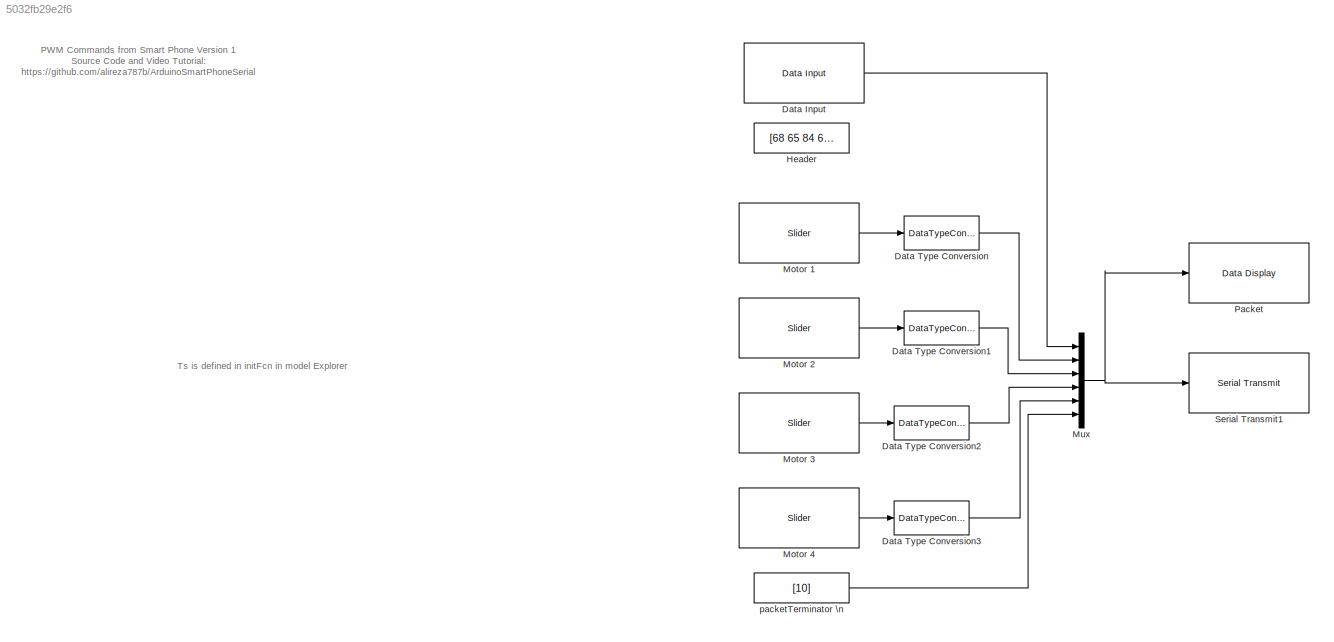
MODEL slx_5032fb29e2f6
KIND model
CONFIG AbsTol = auto
CONFIG EnableMultiTasking = off
CONFIG FixedStep = auto
CONFIG InitFcn = Ts=0.01
CONFIG MaxStep = auto
CONFIG MinStep = auto
CONFIG RelTol = 1e-3
CONFIG SampleTimeConstraint = Unconstrained
CONFIG Solver = FixedStepAuto
CONFIG SolverName = FixedStepAuto
CONFIG StartTime = 0.0
CONFIG StopTime = 10.0
BLOCK [Reference] Data Input  REF=androiduilib/Data Input
  Ports = [0, 1]
  SourceBlock = androiduilib/Data Input
  SourceProductBaseCode = ANDROID
  SourceType = codertarget.internal.androidDataInput
BLOCK [DataTypeConversion] Data Type Conversion
  OutDataTypeStr = uint8
  RndMeth = Floor
  SaturateOnIntegerOverflow = off
BLOCK [DataTypeConversion] Data Type Conversion1
  OutDataTypeStr = uint8
  RndMeth = Floor
  SaturateOnIntegerOverflow = off
BLOCK [DataTypeConversion] Data Type Conversion2
  OutDataTypeStr = uint8
  RndMeth = Floor
  SaturateOnIntegerOverflow = off
BLOCK [DataTypeConversion] Data Type Conversion3
  OutDataTypeStr = uint8
  RndMeth = Floor
  SaturateOnIntegerOverflow = off
BLOCK [Constant] Header
  OutDataTypeStr = uint8
  SampleTime = Ts
  Value = [68 65 84 65]
BLOCK [Reference] Motor 1  REF=androiduilib/Slider
  Ports = [0, 1]
  SourceBlock = androiduilib/Slider
  SourceProductBaseCode = ANDROID
  SourceType = codertarget.internal.androidSlider
BLOCK [Reference] Motor 2  REF=androiduilib/Slider
  Ports = [0, 1]
  SourceBlock = androiduilib/Slider
  SourceProductBaseCode = ANDROID
  SourceType = codertarget.internal.androidSlider
BLOCK [Reference] Motor 3  REF=androiduilib/Slider
  Ports = [0, 1]
  SourceBlock = androiduilib/Slider
  SourceProductBaseCode = ANDROID
  SourceType = codertarget.internal.androidSlider
BLOCK [Reference] Motor 4  REF=androiduilib/Slider
  Ports = [0, 1]
  SourceBlock = androiduilib/Slider
  SourceProductBaseCode = ANDROID
  SourceType = codertarget.internal.androidSlider
BLOCK [Mux] Mux
  DisplayOption = bar
  Inputs = 6
  Ports = [6, 1]
BLOCK [Reference] Packet  REF=androiduilib/Data Display
  Ports = [1]
  SourceBlock = androiduilib/Data Display
  SourceProductBaseCode = ANDROID
  SourceType = codertarget.internal.androidDataDisplay
BLOCK [Reference] Serial Transmit1  REF=androidcommunicationlib/Serial Transmit
  Ports = [1]
  SourceBlock = androidcommunicationlib/Serial Transmit
  SourceProductBaseCode = ANDROID
  SourceType = codertarget.internal.androidSerialTransmit
BLOCK [Constant] packetTerminator \n
  OutDataTypeStr = uint8
  Value = [10]
ANNOTATION (root): Ts is defined in initFcn in model Explorer
ANNOTATION (root): PWM Commands from Smart Phone Version 1 Source Code and Video Tutorial: https://github.com/alireza787b/ArduinoSmartPhoneSerial
LINE Data Input:1 -> Mux:1
LINE Data Type Conversion1:1 -> Mux:3
LINE Data Type Conversion2:1 -> Mux:4
LINE Data Type Conversion3:1 -> Mux:5
LINE Data Type Conversion:1 -> Mux:2
LINE Motor 1:1 -> Data Type Conversion:1
LINE Motor 2:1 -> Data Type Conversion1:1
LINE Motor 3:1 -> Data Type Conversion2:1
LINE Motor 4:1 -> Data Type Conversion3:1
NET Mux:1 -> Packet:1, Serial Transmit1:1
LINE packetTerminator \n:1 -> Mux:6
note: NET lines group one-source signal fan-out (src -> all destinations, sorted); 1:1 wires keep LINE
